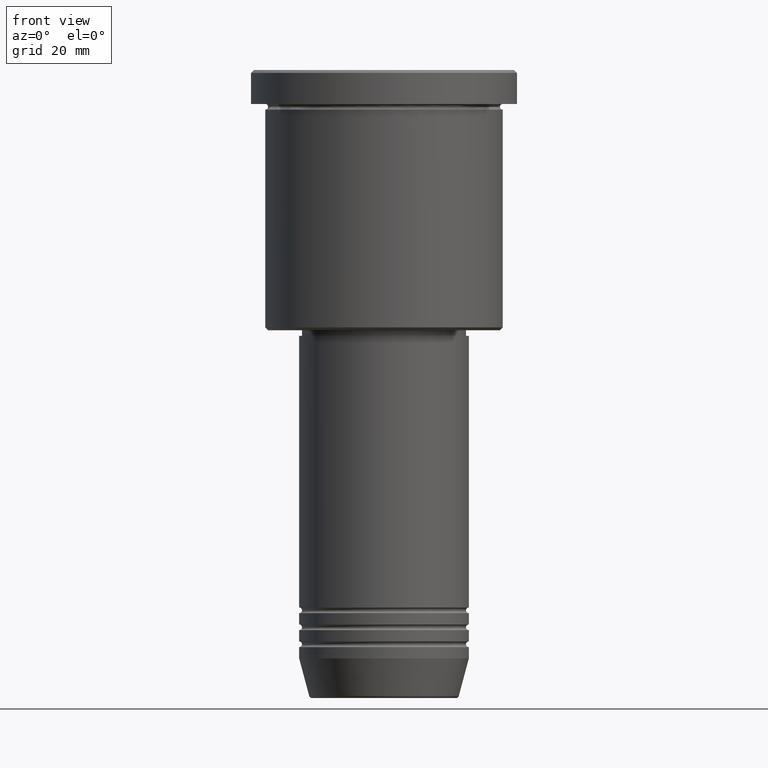
[diagram: clean part render]
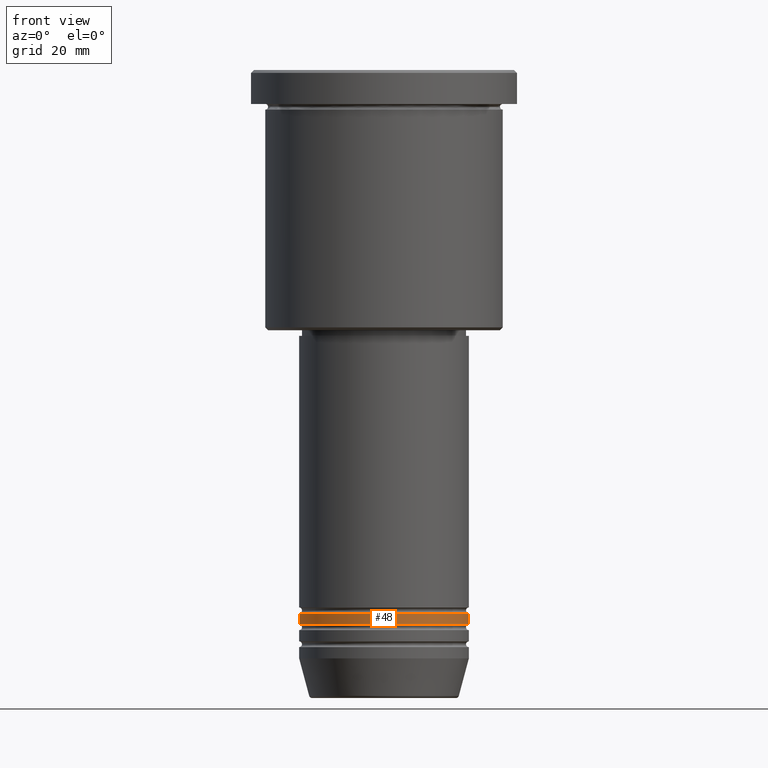
[diagram: same view with one face highlighted and labeled with its STEP entity id]
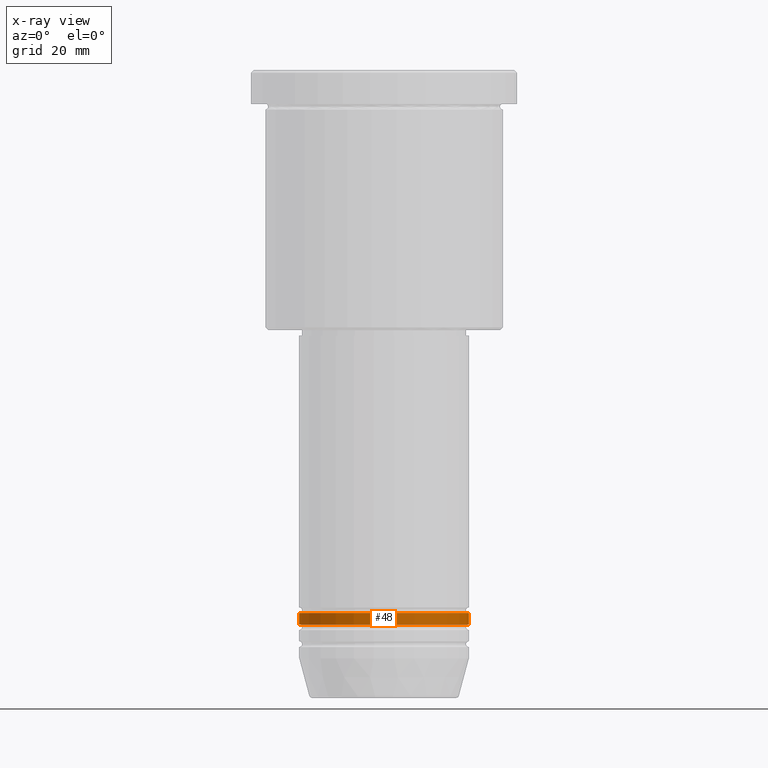
[diagram: x-ray of the same camera — body ghosted, the highlighted face saturated]
A machine part, front view. The second image highlights one B-rep face of the part: STEP entity #48.
The next image is the same camera in x-ray: the body ghosted, the highlighted face saturated — about 0% of this face is hidden behind the body in this view.
In plain terms, the highlighted cylindrical surface (partial cylindrical patch) has radius 15 mm, axis along (-0, -0, 1).
Its self-contained STEP definition (entity closure, byte-faithful):
#33 = VERTEX_POINT ( 'NONE', #231 ) ;
#47 = DIRECTION ( 'NONE',  ( -0.000000000000000000, -0.000000000000000000, 1.000000000000000000 ) ) ;
#48 = ADVANCED_FACE ( 'NONE', ( #954 ), #550, .T. ) ;
#53 = ORIENTED_EDGE ( 'NONE', *, *, #1142, .F. ) ;
#124 = CARTESIAN_POINT ( 'NONE',  ( 15.00000000000000000, 0.000000000000000000, 0.000000000000000000 ) ) ;
#125 = AXIS2_PLACEMENT_3D ( 'NONE', #375, #706, #799 ) ;
#126 = DIRECTION ( 'NONE',  ( -0.000000000000000000, -0.000000000000000000, 1.000000000000000000 ) ) ;
#145 = EDGE_CURVE ( 'NONE', #33, #931, #1038, .T. ) ;
#231 = CARTESIAN_POINT ( 'NONE',  ( -15.00000000000000000, 1.836970198721029589E-15, -97.99999999999997158 ) ) ;
#246 = CARTESIAN_POINT ( 'NONE',  ( -15.00000000000000000, 1.836970198721029589E-15, -95.99999999999998579 ) ) ;
#277 = EDGE_CURVE ( 'NONE', #33, #1023, #1126, .T. ) ;
#303 = CARTESIAN_POINT ( 'NONE',  ( 15.00000000000000000, 0.000000000000000000, -95.99999999999998579 ) ) ;
#324 = CARTESIAN_POINT ( 'NONE',  ( -15.00000000000000000, 1.836970198721029589E-15, 0.000000000000000000 ) ) ;
#375 = CARTESIAN_POINT ( 'NONE',  ( 0.000000000000000000, 0.000000000000000000, 0.000000000000000000 ) ) ;
#439 = ORIENTED_EDGE ( 'NONE', *, *, #537, .T. ) ;
#471 = CARTESIAN_POINT ( 'NONE',  ( 0.000000000000000000, 0.000000000000000000, -95.99999999999998579 ) ) ;
#509 = ORIENTED_EDGE ( 'NONE', *, *, #277, .F. ) ;
#532 = EDGE_LOOP ( 'NONE', ( #509, #650, #439, #53 ) ) ;
#537 = EDGE_CURVE ( 'NONE', #931, #910, #1034, .T. ) ;
#550 = CYLINDRICAL_SURFACE ( 'NONE', #125, 15.00000000000000000 ) ;
#560 = VECTOR ( 'NONE', #47, 1000.000000000000000 ) ;
#582 = CIRCLE ( 'NONE', #899, 15.00000000000000000 ) ;
#650 = ORIENTED_EDGE ( 'NONE', *, *, #145, .T. ) ;
#658 = DIRECTION ( 'NONE',  ( -0.000000000000000000, -0.000000000000000000, 1.000000000000000000 ) ) ;
#706 = DIRECTION ( 'NONE',  ( -0.000000000000000000, -0.000000000000000000, 1.000000000000000000 ) ) ;
#709 = VECTOR ( 'NONE', #887, 1000.000000000000000 ) ;
#799 = DIRECTION ( 'NONE',  ( 1.000000000000000000, 0.000000000000000000, 0.000000000000000000 ) ) ;
#806 = AXIS2_PLACEMENT_3D ( 'NONE', #1081, #658, #851 ) ;
#851 = DIRECTION ( 'NONE',  ( 1.000000000000000000, 0.000000000000000000, 0.000000000000000000 ) ) ;
#856 = CARTESIAN_POINT ( 'NONE',  ( 15.00000000000000000, 0.000000000000000000, -97.99999999999997158 ) ) ;
#887 = DIRECTION ( 'NONE',  ( -0.000000000000000000, -0.000000000000000000, 1.000000000000000000 ) ) ;
#899 = AXIS2_PLACEMENT_3D ( 'NONE', #471, #126, #1111 ) ;
#910 = VERTEX_POINT ( 'NONE', #303 ) ;
#931 = VERTEX_POINT ( 'NONE', #856 ) ;
#954 = FACE_OUTER_BOUND ( 'NONE', #532, .T. ) ;
#1023 = VERTEX_POINT ( 'NONE', #246 ) ;
#1034 = LINE ( 'NONE', #124, #560 ) ;
#1038 = CIRCLE ( 'NONE', #806, 15.00000000000000000 ) ;
#1081 = CARTESIAN_POINT ( 'NONE',  ( 0.000000000000000000, 0.000000000000000000, -97.99999999999997158 ) ) ;
#1111 = DIRECTION ( 'NONE',  ( 1.000000000000000000, 0.000000000000000000, 0.000000000000000000 ) ) ;
#1126 = LINE ( 'NONE', #324, #709 ) ;
#1142 = EDGE_CURVE ( 'NONE', #1023, #910, #582, .T. ) ;